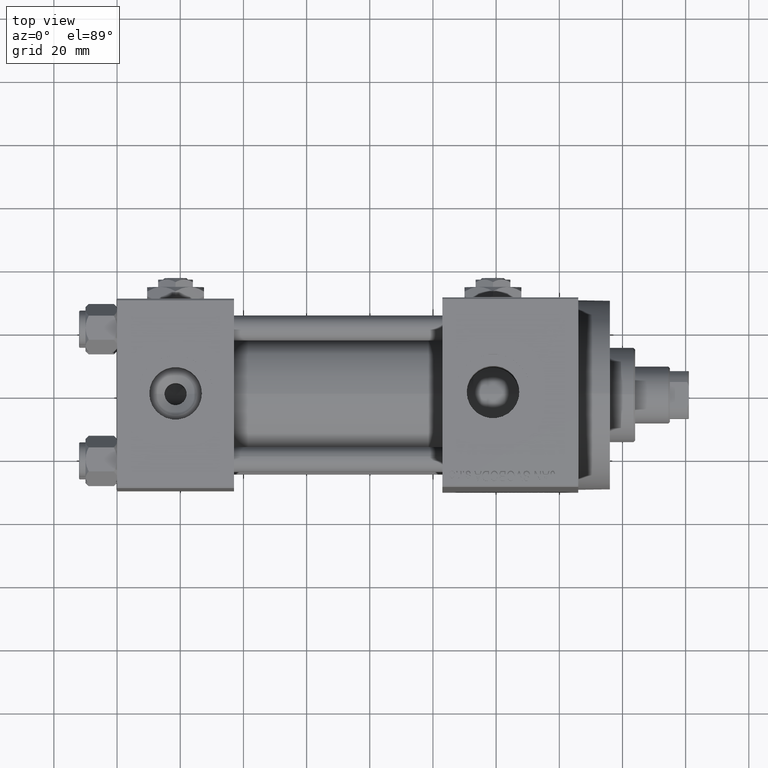
[diagram: clean part render]
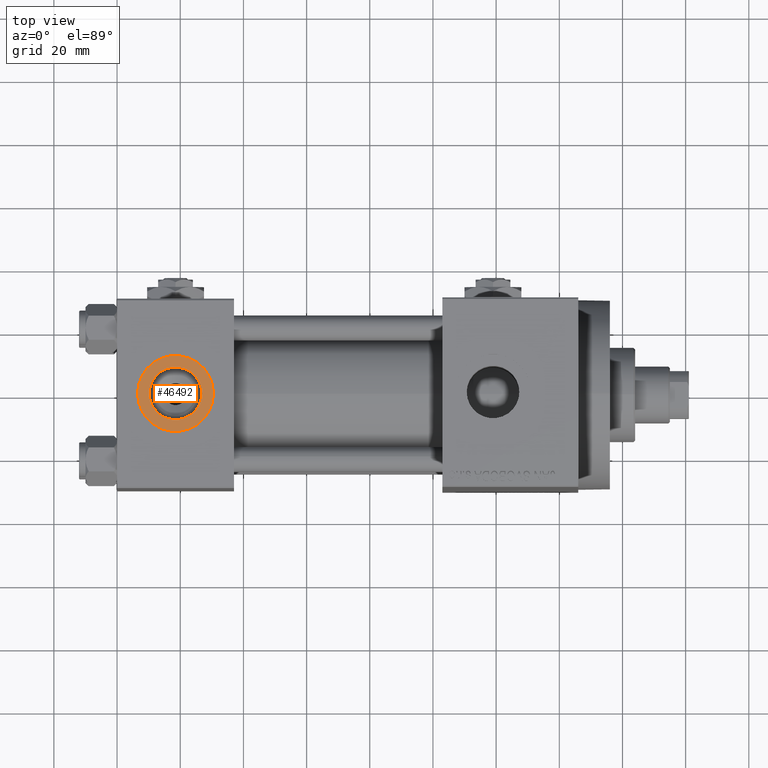
[diagram: same view with one face highlighted and labeled with its STEP entity id]
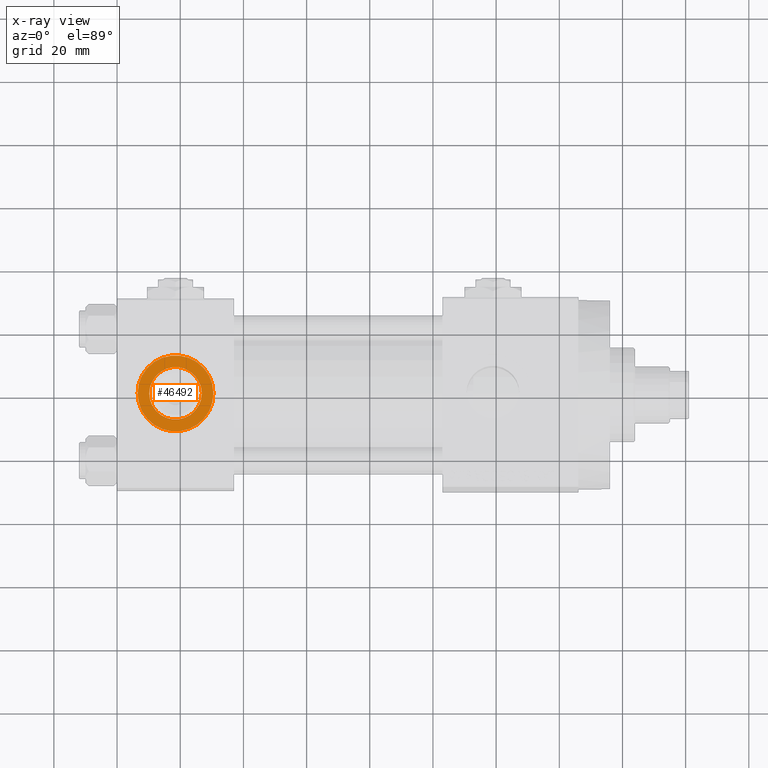
[diagram: x-ray of the same camera — body ghosted, the highlighted face saturated]
A machine part, top view. The second image highlights one B-rep face of the part: STEP entity #46492.
The next image is the same camera in x-ray: the body ghosted, the highlighted face saturated — about 0% of this face is hidden behind the body in this view.
In plain terms, the highlighted planar face has unit normal (0, 0, 1).
Its self-contained STEP definition (entity closure, byte-faithful):
#1517 = ORIENTED_EDGE ( 'NONE', *, *, #6178, .F. ) ;
#2139 = DIRECTION ( 'NONE',  ( 0.000000000000000000, 0.000000000000000000, 1.000000000000000000 ) ) ;
#2185 = DIRECTION ( 'NONE',  ( 0.000000000000000000, 0.000000000000000000, 1.000000000000000000 ) ) ;
#3207 = ORIENTED_EDGE ( 'NONE', *, *, #39018, .T. ) ;
#3605 = AXIS2_PLACEMENT_3D ( 'NONE', #33725, #2139, #40951 ) ;
#4126 = AXIS2_PLACEMENT_3D ( 'NONE', #9770, #36454, #6292 ) ;
#4521 = EDGE_CURVE ( 'NONE', #19077, #26589, #4853, .T. ) ;
#4853 = CIRCLE ( 'NONE', #47865, 12.00000000000000000 ) ;
#5162 = ORIENTED_EDGE ( 'NONE', *, *, #4521, .T. ) ;
#5728 = PLANE ( 'NONE',  #45938 ) ;
#6178 = EDGE_CURVE ( 'NONE', #43531, #18561, #27188, .T. ) ;
#6292 = DIRECTION ( 'NONE',  ( 1.000000000000000000, 0.000000000000000000, 0.000000000000000000 ) ) ;
#7498 = CARTESIAN_POINT ( 'NONE',  ( 30.50000000000000000, -3.469446951953614978E-15, 29.79999999999999716 ) ) ;
#9770 = CARTESIAN_POINT ( 'NONE',  ( 18.50000000000000000, -3.469446951953614978E-15, 29.79999999999999716 ) ) ;
#9811 = ORIENTED_EDGE ( 'NONE', *, *, #32402, .F. ) ;
#12805 = EDGE_LOOP ( 'NONE', ( #3207, #5162 ) ) ;
#12938 = DIRECTION ( 'NONE',  ( 0.000000000000000000, 0.000000000000000000, 1.000000000000000000 ) ) ;
#13887 = DIRECTION ( 'NONE',  ( 1.000000000000000000, 0.000000000000000000, 0.000000000000000000 ) ) ;
#18107 = DIRECTION ( 'NONE',  ( 1.000000000000000000, 0.000000000000000000, 0.000000000000000000 ) ) ;
#18337 = CIRCLE ( 'NONE', #34252, 8.330000000000000071 ) ;
#18561 = VERTEX_POINT ( 'NONE', #43490 ) ;
#19077 = VERTEX_POINT ( 'NONE', #42568 ) ;
#22999 = EDGE_LOOP ( 'NONE', ( #1517, #9811 ) ) ;
#26589 = VERTEX_POINT ( 'NONE', #7498 ) ;
#27188 = CIRCLE ( 'NONE', #4126, 8.330000000000000071 ) ;
#27506 = CIRCLE ( 'NONE', #3605, 12.00000000000000000 ) ;
#28909 = CARTESIAN_POINT ( 'NONE',  ( 18.50000000000000000, -3.469446951953614978E-15, 29.79999999999999716 ) ) ;
#29343 = DIRECTION ( 'NONE',  ( 0.000000000000000000, 0.000000000000000000, 1.000000000000000000 ) ) ;
#32402 = EDGE_CURVE ( 'NONE', #18561, #43531, #18337, .T. ) ;
#33725 = CARTESIAN_POINT ( 'NONE',  ( 18.50000000000000000, -3.469446951953614978E-15, 29.79999999999999716 ) ) ;
#34252 = AXIS2_PLACEMENT_3D ( 'NONE', #44282, #29343, #18107 ) ;
#36381 = DIRECTION ( 'NONE',  ( 1.000000000000000000, 0.000000000000000000, -0.000000000000000000 ) ) ;
#36454 = DIRECTION ( 'NONE',  ( 0.000000000000000000, 0.000000000000000000, 1.000000000000000000 ) ) ;
#39018 = EDGE_CURVE ( 'NONE', #26589, #19077, #27506, .T. ) ;
#40123 = FACE_BOUND ( 'NONE', #22999, .T. ) ;
#40951 = DIRECTION ( 'NONE',  ( 1.000000000000000000, 0.000000000000000000, 0.000000000000000000 ) ) ;
#42568 = CARTESIAN_POINT ( 'NONE',  ( 6.499999999999997335, -1.999870792976790833E-15, 29.79999999999999716 ) ) ;
#43490 = CARTESIAN_POINT ( 'NONE',  ( 10.16999999999999638, -2.449316168263869821E-15, 29.79999999999999716 ) ) ;
#43531 = VERTEX_POINT ( 'NONE', #43898 ) ;
#43898 = CARTESIAN_POINT ( 'NONE',  ( 26.82999999999999829, -3.469446951953614978E-15, 29.79999999999999716 ) ) ;
#44095 = FACE_OUTER_BOUND ( 'NONE', #12805, .T. ) ;
#44282 = CARTESIAN_POINT ( 'NONE',  ( 18.50000000000000000, -3.469446951953614978E-15, 29.79999999999999716 ) ) ;
#45938 = AXIS2_PLACEMENT_3D ( 'NONE', #28909, #12938, #36381 ) ;
#46492 = ADVANCED_FACE ( 'NONE', ( #40123, #44095 ), #5728, .T. ) ;
#47865 = AXIS2_PLACEMENT_3D ( 'NONE', #48050, #2185, #13887 ) ;
#48050 = CARTESIAN_POINT ( 'NONE',  ( 18.50000000000000000, -3.469446951953614978E-15, 29.79999999999999716 ) ) ;